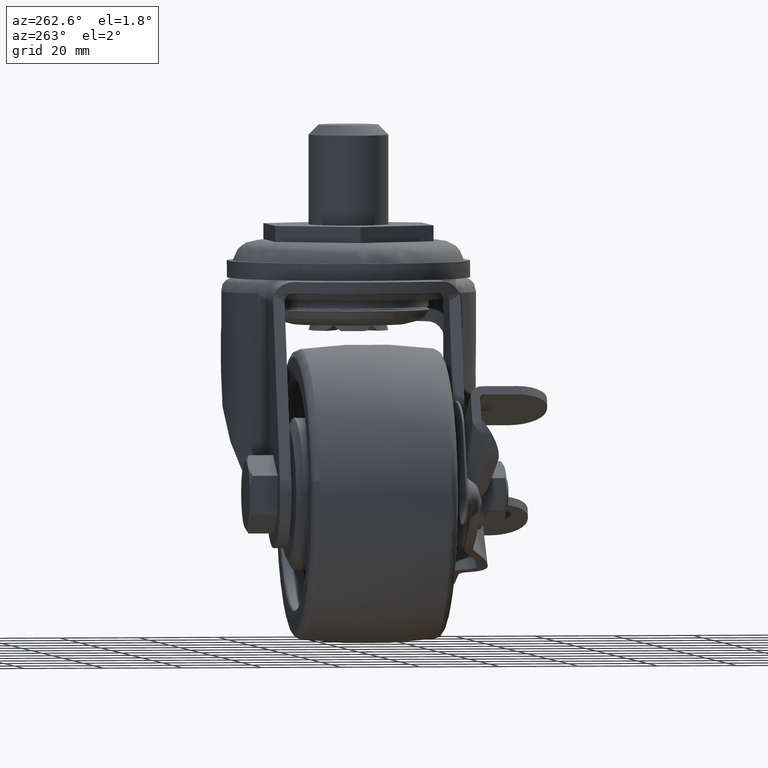
[diagram: clean part render]
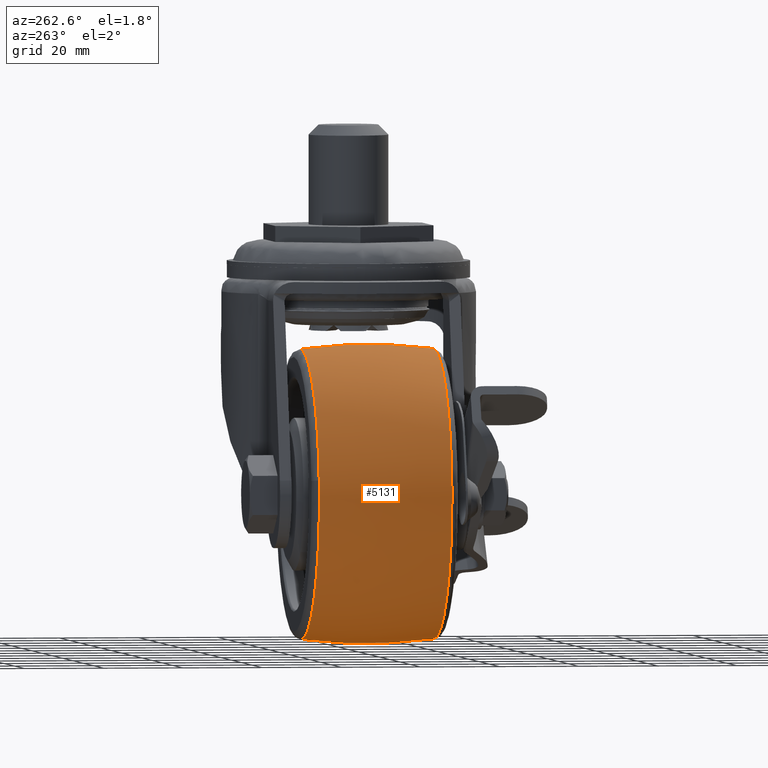
[diagram: same view with one face highlighted and labeled with its STEP entity id]
A machine part, auxiliary view. The second image highlights one B-rep face of the part: STEP entity #5131.
In plain terms, the highlighted face is a freeform B-spline surface patch.
Its self-contained STEP definition (entity closure, byte-faithful):
#4858=CARTESIAN_POINT('',(-35.999985999999900,-16.757816595312161,-26.084618516804358));
#4859=VERTEX_POINT('',#4858);
#4873=CARTESIAN_POINT('',(-72.002116700144853,-16.757816562048109,-67.970522176112823));
#4874=VERTEX_POINT('',#4873);
#4875=CARTESIAN_POINT('',(-72.002116700144853,-16.757816562048109,-67.970522176112823));
#4876=CARTESIAN_POINT('',(-72.415367770814100,-16.757816563129015,-65.250869857415353));
#4877=CARTESIAN_POINT('',(-72.415367780368072,-16.757816564386271,-62.499999964267801));
#4878=CARTESIAN_POINT('',(-72.415367906841212,-16.757816581029562,-26.084618500286290));
#4879=CARTESIAN_POINT('',(-35.999985999999900,-16.757816595312161,-26.084618516804358));
#4887=(BOUNDED_CURVE()B_SPLINE_CURVE(2,(#4875,#4876,#4877,#4878,#4879),.UNSPECIFIED.,.F.,.U.)B_SPLINE_CURVE_WITH_KNOTS((3,2,3),(0.724102415013567,0.750000000000000,1.0),.UNSPECIFIED.)CURVE()GEOMETRIC_REPRESENTATION_ITEM()RATIONAL_B_SPLINE_CURVE((0.945604233760283,0.969659091895315,1.0,0.707106781186548,1.0))REPRESENTATION_ITEM(''));
#4888=EDGE_CURVE('',#4874,#4859,#4887,.T.);
#4937=CARTESIAN_POINT('',(-35.999985999999900,-16.757816595259129,-98.915381483202538));
#4938=VERTEX_POINT('',#4937);
#4939=CARTESIAN_POINT('',(-35.999985999999900,-16.757816595259129,-98.915381483202538));
#4940=CARTESIAN_POINT('',(-67.300046684570717,-16.757816578642359,-98.915381463984943));
#4941=CARTESIAN_POINT('',(-72.002116700144853,-16.757816562048102,-67.970522176112823));
#4949=(BOUNDED_CURVE()B_SPLINE_CURVE(2,(#4939,#4940,#4941),.UNSPECIFIED.,.F.,.U.)B_SPLINE_CURVE_WITH_KNOTS((3,3),(0.500000000000000,0.724102415013567),.UNSPECIFIED.)CURVE()GEOMETRIC_REPRESENTATION_ITEM()RATIONAL_B_SPLINE_CURVE((1.0,0.737447689291233,0.945604233760283))REPRESENTATION_ITEM(''));
#4950=EDGE_CURVE('',#4938,#4874,#4949,.T.);
#5001=CARTESIAN_POINT('',(-35.999985999999900,16.757815356510349,-26.084618355771440));
#5002=VERTEX_POINT('',#5001);
#5003=CARTESIAN_POINT('',(-35.999985999999893,16.757815356510342,-26.084618355771422));
#5004=CARTESIAN_POINT('',(-35.999985999999893,-0.000000629867310,-23.906256220110265));
#5005=CARTESIAN_POINT('',(-35.999985999999886,-16.757816595312171,-26.084618516804291));
#5013=(BOUNDED_CURVE()B_SPLINE_CURVE(2,(#5003,#5004,#5005),.UNSPECIFIED.,.F.,.U.)B_SPLINE_CURVE_WITH_KNOTS((3,3),(0.421172286900253,0.578827718976020),.UNSPECIFIED.)CURVE()GEOMETRIC_REPRESENTATION_ITEM()RATIONAL_B_SPLINE_CURVE((0.859354120203386,0.852184341067837,0.859354120737863))REPRESENTATION_ITEM(''));
#5014=EDGE_CURVE('',#5002,#4859,#5013,.T.);
#5018=CARTESIAN_POINT('',(-35.999985999999900,16.757813928235919,-98.915381829891118));
#5019=VERTEX_POINT('',#5018);
#5020=CARTESIAN_POINT('',(-35.999985999999907,16.757813928235915,-98.915381829891146));
#5021=CARTESIAN_POINT('',(-35.999985999999893,-0.000001356044769,-101.093743685486330));
#5022=CARTESIAN_POINT('',(-35.999985999999893,-16.757816595259136,-98.915381483202623));
#5030=(BOUNDED_CURVE()B_SPLINE_CURVE(2,(#5020,#5021,#5022),.UNSPECIFIED.,.F.,.U.)B_SPLINE_CURVE_WITH_KNOTS((3,3),(0.421172293675293,0.578827718975768),.UNSPECIFIED.)CURVE()GEOMETRIC_REPRESENTATION_ITEM()RATIONAL_B_SPLINE_CURVE((0.859354119587162,0.852184341375961,0.859354120737840))REPRESENTATION_ITEM(''));
#5031=EDGE_CURVE('',#5019,#4938,#5030,.T.);
#5066=CARTESIAN_POINT('',(-34.988259681969808,18.415804423310199,-98.688997771535981));
#5067=CARTESIAN_POINT('',(-34.914583597591395,-0.000003197279656,-101.324358348670730));
#5068=CARTESIAN_POINT('',(-34.988259707039127,-18.415810689546237,-98.688996874817548));
#5069=CARTESIAN_POINT('',(-35.491176820594291,18.415804423310203,-98.688997771535981));
#5070=CARTESIAN_POINT('',(-35.454124242870122,-0.000003197279656,-101.324358348670730));
#5071=CARTESIAN_POINT('',(-35.491176833201955,-18.415810689546234,-98.688996874817533));
#5072=CARTESIAN_POINT('',(-72.188983771535888,18.415804423310203,-98.688997771535966));
#5073=CARTESIAN_POINT('',(-74.824344348670635,-0.000003197279656,-101.324358348670710));
#5074=CARTESIAN_POINT('',(-72.188982874817441,-18.415810689546227,-98.688996874817519));
#5075=CARTESIAN_POINT('',(-72.188983771535888,18.415804423310199,-62.499999999999993));
#5076=CARTESIAN_POINT('',(-74.824344348670635,-0.000003197279656,-62.499999999999993));
#5077=CARTESIAN_POINT('',(-72.188982874817441,-18.415810689546234,-62.500000000000000));
#5078=CARTESIAN_POINT('',(-72.188983771535860,18.415804423310203,-26.311002228464023));
#5079=CARTESIAN_POINT('',(-74.824344348670607,-0.000003197279656,-23.675641651329272));
#5080=CARTESIAN_POINT('',(-72.188982874817412,-18.415810689546227,-26.311003125182467));
#5081=CARTESIAN_POINT('',(-35.491176820594305,18.415804423310206,-26.311002228464041));
#5082=CARTESIAN_POINT('',(-35.454124242870122,-0.000003197279656,-23.675641651329272));
#5083=CARTESIAN_POINT('',(-35.491176833201955,-18.415810689546234,-26.311003125182477));
#5084=CARTESIAN_POINT('',(-34.988259681969822,18.415804423310199,-26.311002228464037));
#5085=CARTESIAN_POINT('',(-34.914583597591395,-0.000003197279656,-23.675641651329283));
#5086=CARTESIAN_POINT('',(-34.988259707039148,-18.415810689546237,-26.311003125182477));
#5094=(BOUNDED_SURFACE()B_SPLINE_SURFACE(2,2,((#5066,#5069,#5072,#5075,#5078,#5081,#5084),(#5067,#5070,#5073,#5076,#5079,#5082,#5085),(#5068,#5071,#5074,#5077,#5080,#5083,#5086)),.UNSPECIFIED.,.F.,.F.,.U.)B_SPLINE_SURFACE_WITH_KNOTS((3,3),(3,1,2,1,3),(0.0,37.018273016765498),(0.0,1.242640687119300,63.374675043083492,125.506709399047690,126.749350086167000),.UNSPECIFIED.)GEOMETRIC_REPRESENTATION_ITEM()RATIONAL_B_SPLINE_SURFACE(((0.870182928484053,0.865144543261072,0.608186896889042,0.860106158038091,0.608186896889042,0.865144543261072,0.870182928484053),(0.861407451911131,0.856419876960384,0.602053554472287,0.851432302009637,0.602053554472287,0.856419876960384,0.861407451911131),(0.870182931500451,0.865144546260005,0.608186898997259,0.860106161019559,0.608186898997259,0.865144546260005,0.870182931500451)))REPRESENTATION_ITEM('')SURFACE());
#5095=ORIENTED_EDGE('',*,*,#5014,.F.);
#5096=CARTESIAN_POINT('',(-72.128221702004993,16.757814714379158,-57.935942439409871));
#5097=VERTEX_POINT('',#5096);
#5098=CARTESIAN_POINT('',(-72.128221702004993,16.757814714379162,-57.935942439409871));
#5099=CARTESIAN_POINT('',(-68.104463653440732,16.757815347760801,-26.084618364217821));
#5100=CARTESIAN_POINT('',(-35.999985999999900,16.757815356510349,-26.084618355771440));
#5108=(BOUNDED_CURVE()B_SPLINE_CURVE(2,(#5098,#5099,#5100),.UNSPECIFIED.,.F.,.U.)B_SPLINE_CURVE_WITH_KNOTS((3,3),(0.771678744105115,1.0),.UNSPECIFIED.)CURVE()GEOMETRIC_REPRESENTATION_ITEM()RATIONAL_B_SPLINE_CURVE((0.953608356455703,0.732505009749669,1.0))REPRESENTATION_ITEM(''));
#5109=EDGE_CURVE('',#5097,#5002,#5108,.T.);
#5110=ORIENTED_EDGE('',*,*,#5109,.F.);
#5111=CARTESIAN_POINT('',(-35.999985999999900,16.757813928235919,-98.915381829891118));
#5112=CARTESIAN_POINT('',(-72.415367956603447,16.757813920522153,-98.915381837337591));
#5113=CARTESIAN_POINT('',(-72.415367889743365,16.757814625909809,-62.500000108724151));
#5114=CARTESIAN_POINT('',(-72.415367885536895,16.757814670289044,-60.208938420738356));
#5115=CARTESIAN_POINT('',(-72.128221702004993,16.757814714379162,-57.935942439409871));
#5123=(BOUNDED_CURVE()B_SPLINE_CURVE(2,(#5111,#5112,#5113,#5114,#5115),.UNSPECIFIED.,.F.,.U.)B_SPLINE_CURVE_WITH_KNOTS((3,2,3),(0.500000000000000,0.750000000000000,0.771678744105115),.UNSPECIFIED.)CURVE()GEOMETRIC_REPRESENTATION_ITEM()RATIONAL_B_SPLINE_CURVE((1.0,0.707106781186548,1.0,0.974601771436879,0.953608356455703))REPRESENTATION_ITEM(''));
#5124=EDGE_CURVE('',#5019,#5097,#5123,.T.);
#5125=ORIENTED_EDGE('',*,*,#5124,.F.);
#5126=ORIENTED_EDGE('',*,*,#5031,.T.);
#5127=ORIENTED_EDGE('',*,*,#4950,.T.);
#5128=ORIENTED_EDGE('',*,*,#4888,.T.);
#5129=EDGE_LOOP('',(#5095,#5110,#5125,#5126,#5127,#5128));
#5130=FACE_OUTER_BOUND('',#5129,.T.);
#5131=ADVANCED_FACE('',(#5130),#5094,.T.);